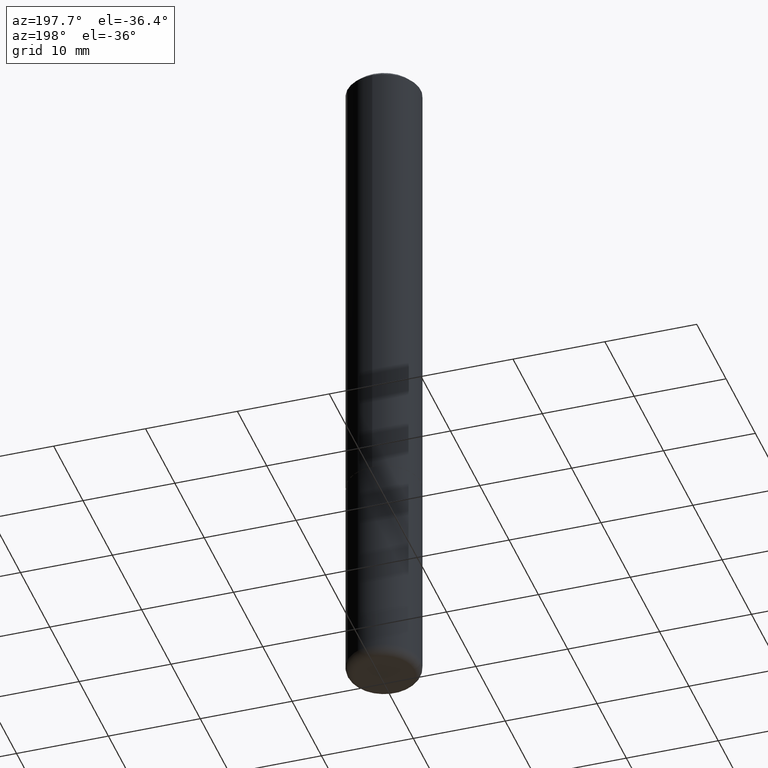
[diagram: clean part render]
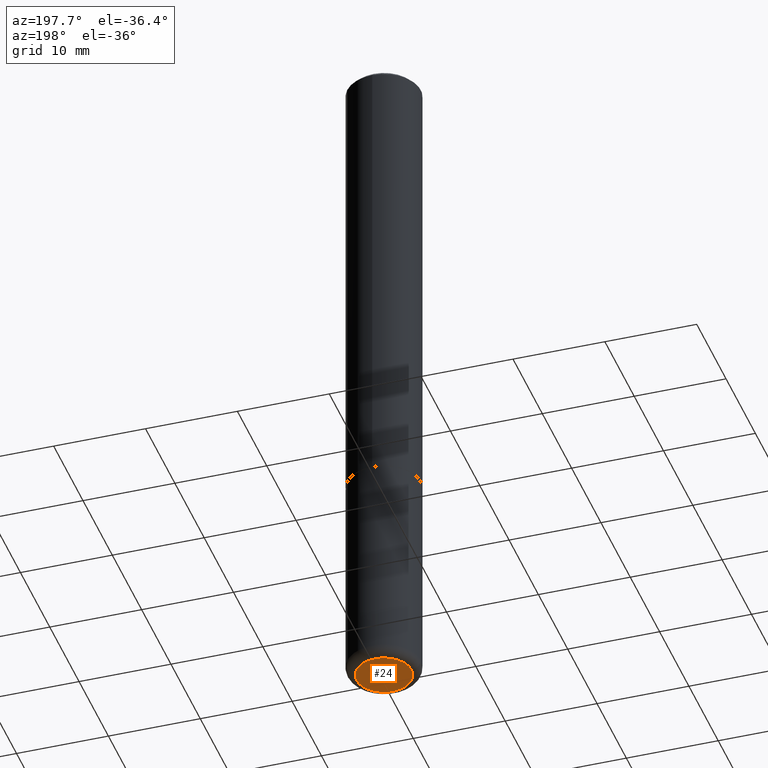
[diagram: same view with one face highlighted and labeled with its STEP entity id]
A machine part, auxiliary view. The second image highlights one B-rep face of the part: STEP entity #24.
In plain terms, the highlighted planar face has unit normal (0, -0, -1).
Its self-contained STEP definition (entity closure, byte-faithful):
#3 = AXIS2_PLACEMENT_3D ( 'NONE', #163, #100, #332 ) ;
#7 = VERTEX_POINT ( 'NONE', #374 ) ;
#24 = ADVANCED_FACE ( 'NONE', ( #68 ), #290, .T. ) ;
#38 = CARTESIAN_POINT ( 'NONE',  ( 7.220980290903470182E-29, -1.030964609733603853E-14, -2.952799999999999869 ) ) ;
#39 = AXIS2_PLACEMENT_3D ( 'NONE', #38, #411, #222 ) ;
#68 = FACE_OUTER_BOUND ( 'NONE', #199, .T. ) ;
#69 = EDGE_CURVE ( 'NONE', #7, #99, #378, .T. ) ;
#92 = DIRECTION ( 'NONE',  ( 1.000000000000000000, -6.982962677686273021E-15, 0.000000000000000000 ) ) ;
#99 = VERTEX_POINT ( 'NONE', #176 ) ;
#100 = DIRECTION ( 'NONE',  ( -2.445468806185136597E-29, 3.491481338843145583E-15, 1.000000000000000000 ) ) ;
#126 = CARTESIAN_POINT ( 'NONE',  ( 7.220980290903470182E-29, -1.030964609733603853E-14, -2.952799999999999869 ) ) ;
#142 = CIRCLE ( 'NONE', #3, 0.1180999999999999966 ) ;
#163 = CARTESIAN_POINT ( 'NONE',  ( 7.220980290903470182E-29, -1.030964609733603853E-14, -2.952799999999999869 ) ) ;
#165 = ORIENTED_EDGE ( 'NONE', *, *, #367, .F. ) ;
#176 = CARTESIAN_POINT ( 'NONE',  ( -0.1180999999999999966, -9.261736025083411415E-15, -2.952799999999999869 ) ) ;
#191 = DIRECTION ( 'NONE',  ( -2.445468806185136597E-29, 3.491481338843145583E-15, 1.000000000000000000 ) ) ;
#193 = AXIS2_PLACEMENT_3D ( 'NONE', #126, #191, #92 ) ;
#199 = EDGE_LOOP ( 'NONE', ( #345, #165 ) ) ;
#222 = DIRECTION ( 'NONE',  ( -1.000000000000000000, 6.982962677686265922E-15, -4.876176775795935793E-29 ) ) ;
#290 = PLANE ( 'NONE',  #39 ) ;
#332 = DIRECTION ( 'NONE',  ( 1.000000000000000000, -6.982962677686273021E-15, 0.000000000000000000 ) ) ;
#345 = ORIENTED_EDGE ( 'NONE', *, *, #69, .F. ) ;
#367 = EDGE_CURVE ( 'NONE', #99, #7, #142, .T. ) ;
#374 = CARTESIAN_POINT ( 'NONE',  ( 0.1180999999999999966, -1.113433398957078679E-14, -2.952799999999999869 ) ) ;
#378 = CIRCLE ( 'NONE', #193, 0.1180999999999999966 ) ;
#411 = DIRECTION ( 'NONE',  ( 2.438088387897960049E-29, -3.491481338843145188E-15, -1.000000000000000000 ) ) ;